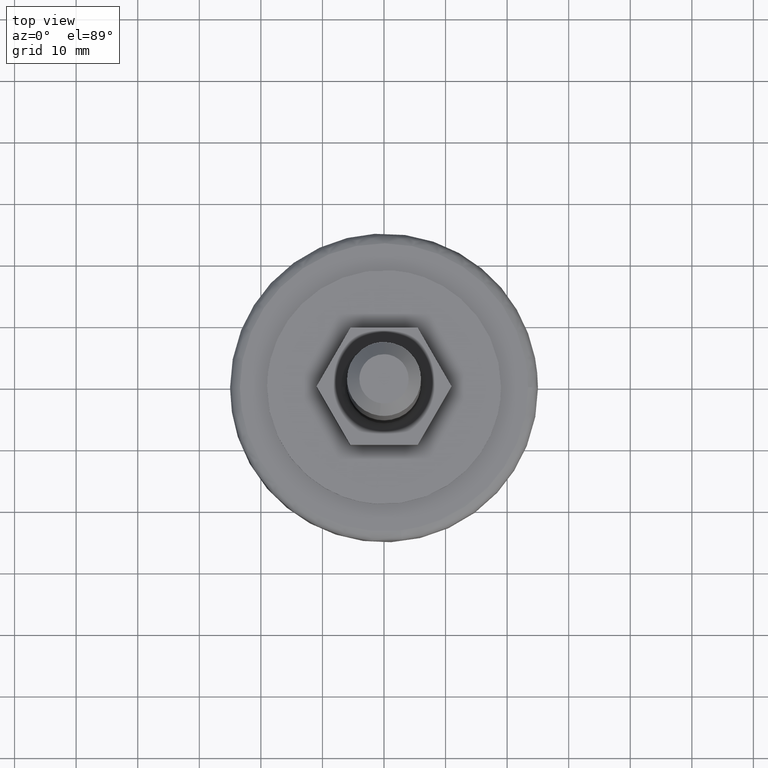
[diagram: clean part render]
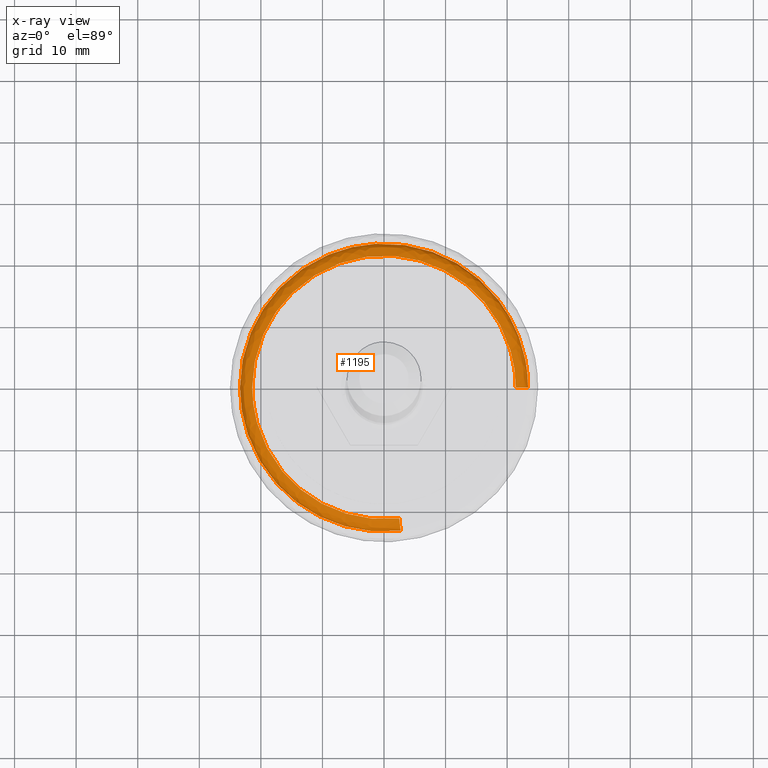
[diagram: x-ray — body ghosted, one internal face saturated and labeled with its STEP entity id]
A machine part, top view, then the same camera in x-ray: the body is ghosted and one INTERNAL B-rep face — a face not visible from any outside direction — is saturated and labeled: STEP entity #1195.
In plain terms, the highlighted face is a freeform B-spline surface patch.
Its self-contained STEP definition (entity closure, byte-faithful):
#917=CARTESIAN_POINT('',(21.905764110055451,8.227848974941869,12.900000000141119));
#918=VERTEX_POINT('',#917);
#919=CARTESIAN_POINT('',(23.399999999999999,1.921379E-017,12.900000000217450));
#920=VERTEX_POINT('',#919);
#921=CARTESIAN_POINT('',(21.905764110055458,8.227848974941869,12.900000000141121));
#922=CARTESIAN_POINT('',(23.399999999999999,4.249606419747416,12.900000000177959));
#923=CARTESIAN_POINT('',(23.399999999999999,1.921379E-017,12.900000000217450));
#931=(BOUNDED_CURVE()B_SPLINE_CURVE(2,(#921,#922,#923),.UNSPECIFIED.,.F.,.U.)B_SPLINE_CURVE_WITH_KNOTS((3,3),(0.440284254726040,0.500000000000000),.UNSPECIFIED.)CURVE()GEOMETRIC_REPRESENTATION_ITEM()RATIONAL_B_SPLINE_CURVE((0.893499657220340,0.930038652611462,1.0))REPRESENTATION_ITEM(''));
#932=EDGE_CURVE('',#918,#920,#931,.T.);
#934=CARTESIAN_POINT('',(2.701862969655055,-23.243492347175511,12.900000000217570));
#935=VERTEX_POINT('',#934);
#949=CARTESIAN_POINT('',(-23.399999999999999,0.0,12.900000000000000));
#950=VERTEX_POINT('',#949);
#951=CARTESIAN_POINT('',(2.701862969655055,-23.243492347175515,12.900000000217567));
#952=CARTESIAN_POINT('',(1.355464404326243,-23.400000000000006,12.900000000000004));
#953=CARTESIAN_POINT('',(0.0,-23.399999999999999,12.900000000000000));
#954=CARTESIAN_POINT('',(-23.400000000000009,-23.400000000000009,12.900000000000002));
#955=CARTESIAN_POINT('',(-23.399999999999999,0.0,12.900000000000000));
#963=(BOUNDED_CURVE()B_SPLINE_CURVE(2,(#951,#952,#953,#954,#955),.UNSPECIFIED.,.F.,.U.)B_SPLINE_CURVE_WITH_KNOTS((3,2,3),(0.729999999950491,0.750000000000000,1.0),.UNSPECIFIED.)CURVE()GEOMETRIC_REPRESENTATION_ITEM()RATIONAL_B_SPLINE_CURVE((0.956886118093213,0.976568542436920,1.0,0.707106781186548,1.0))REPRESENTATION_ITEM(''));
#964=EDGE_CURVE('',#935,#950,#963,.T.);
#966=CARTESIAN_POINT('',(-1.428506676943675,23.356356065813738,12.900000000000050));
#967=VERTEX_POINT('',#966);
#968=CARTESIAN_POINT('',(-23.399999999999999,0.0,12.900000000000000));
#969=CARTESIAN_POINT('',(-23.399999999999995,22.012549488043568,12.900000000000002));
#970=CARTESIAN_POINT('',(-1.428506676943676,23.356356065813749,12.900000000000052));
#978=(BOUNDED_CURVE()B_SPLINE_CURVE(2,(#968,#969,#970),.UNSPECIFIED.,.F.,.U.)B_SPLINE_CURVE_WITH_KNOTS((3,3),(0.0,0.239333177576273),.UNSPECIFIED.)CURVE()GEOMETRIC_REPRESENTATION_ITEM()RATIONAL_B_SPLINE_CURVE((1.0,0.719603741003335,0.976072503176042))REPRESENTATION_ITEM(''));
#979=EDGE_CURVE('',#950,#967,#978,.T.);
#1057=CARTESIAN_POINT('',(-1.428506676943676,23.356356065813749,12.900000000000052));
#1058=CARTESIAN_POINT('',(-0.714920046238067,23.399999999999999,12.899999999999999));
#1059=CARTESIAN_POINT('',(0.0,23.399999999999999,12.900000000000000));
#1060=CARTESIAN_POINT('',(16.207073727380898,23.399999999999999,12.899999999999997));
#1061=CARTESIAN_POINT('',(21.905764110055458,8.227848974941869,12.900000000141121));
#1069=(BOUNDED_CURVE()B_SPLINE_CURVE(2,(#1057,#1058,#1059,#1060,#1061),.UNSPECIFIED.,.F.,.U.)B_SPLINE_CURVE_WITH_KNOTS((3,2,3),(0.239333177576273,0.250000000000000,0.440284254726040),.UNSPECIFIED.)CURVE()GEOMETRIC_REPRESENTATION_ITEM()RATIONAL_B_SPLINE_CURVE((0.976072503176042,0.987503040183212,1.0,0.777068128575085,0.893499657220340))REPRESENTATION_ITEM(''));
#1070=EDGE_CURVE('',#967,#918,#1069,.T.);
#1092=CARTESIAN_POINT('',(2.454917021442404,-21.119095162452339,14.895184650738340));
#1093=CARTESIAN_POINT('',(1.231577119022009,-21.261298127416524,14.895184650738333));
#1094=CARTESIAN_POINT('',(2.603672E-015,-21.261298127416520,14.895184650738333));
#1095=CARTESIAN_POINT('',(-21.261298127416520,-21.261298127416534,14.895184650738335));
#1096=CARTESIAN_POINT('',(-21.261298127416520,-3.905508E-015,14.895184650738333));
#1097=CARTESIAN_POINT('',(-21.261298127416534,21.261298127416520,14.895184650738335));
#1098=CARTESIAN_POINT('',(-5.207344E-015,21.261298127416520,14.895184650738333));
#1099=CARTESIAN_POINT('',(21.261298127416520,21.261298127416534,14.895184650738335));
#1100=CARTESIAN_POINT('',(21.261298127416520,6.509180E-015,14.895184650738333));
#1101=CARTESIAN_POINT('',(2.719812604689965,-23.397931873369568,15.054672244805426));
#1102=CARTESIAN_POINT('',(1.364469325319883,-23.555479119633166,15.054672244805426));
#1103=CARTESIAN_POINT('',(2.884619E-015,-23.555479119633173,15.054672244805424));
#1104=CARTESIAN_POINT('',(-23.555479119633169,-23.555479119633173,15.054672244805426));
#1105=CARTESIAN_POINT('',(-23.555479119633173,-4.326928E-015,15.054672244805424));
#1106=CARTESIAN_POINT('',(-23.555479119633176,23.555479119633166,15.054672244805426));
#1107=CARTESIAN_POINT('',(-5.769238E-015,23.555479119633173,15.054672244805424));
#1108=CARTESIAN_POINT('',(23.555479119633166,23.555479119633180,15.054672244805426));
#1109=CARTESIAN_POINT('',(23.555479119633173,7.211547E-015,15.054672244805424));
#1110=CARTESIAN_POINT('',(2.701298333023367,-23.238657787208954,12.760551126614018));
#1111=CARTESIAN_POINT('',(1.355181128138153,-23.395132579983429,12.760551126614013));
#1112=CARTESIAN_POINT('',(2.864983E-015,-23.395132579983432,12.760551126614009));
#1113=CARTESIAN_POINT('',(-23.395132579983414,-23.395132579983446,12.760551126614008));
#1114=CARTESIAN_POINT('',(-23.395132579983432,-4.297474E-015,12.760551126614009));
#1115=CARTESIAN_POINT('',(-23.395132579983446,23.395132579983414,12.760551126614008));
#1116=CARTESIAN_POINT('',(-5.729966E-015,23.395132579983432,12.760551126614009));
#1117=CARTESIAN_POINT('',(23.395132579983414,23.395132579983446,12.760551126614008));
#1118=CARTESIAN_POINT('',(23.395132579983432,7.162457E-015,12.760551126614009));
#1126=(BOUNDED_SURFACE()B_SPLINE_SURFACE(2,2,((#1092,#1101,#1110),(#1093,#1102,#1111),(#1094,#1103,#1112),(#1095,#1104,#1113),(#1096,#1105,#1114),(#1097,#1106,#1115),(#1098,#1107,#1116),(#1099,#1108,#1117),(#1100,#1109,#1118)),.UNSPECIFIED.,.F.,.F.,.U.)B_SPLINE_SURFACE_WITH_KNOTS((3,2,2,2,3),(3,3),(0.0,3.100983029275963,41.863307861859141,80.625632694442317,119.387957527025510),(0.0,3.644742137595679),.UNSPECIFIED.)GEOMETRIC_REPRESENTATION_ITEM()RATIONAL_B_SPLINE_SURFACE(((0.876475925220254,0.573569815709612,0.871620944530905),(0.894504357997792,0.585367703784116,0.889549514105730),(0.915966774072356,0.599412806083392,0.910893045436754),(0.647686317288129,0.423848859911623,0.644098649363994),(0.915966774072356,0.599412806083392,0.910893045436754),(0.647686317288129,0.423848859911623,0.644098649363994),(0.915966774072356,0.599412806083392,0.910893045436754),(0.647686317288129,0.423848859911623,0.644098649363994),(0.915966774072356,0.599412806083392,0.910893045436754)))REPRESENTATION_ITEM('')SURFACE());
#1127=CARTESIAN_POINT('',(2.470934508600304,-21.256869076213590,14.900000000000000));
#1128=VERTEX_POINT('',#1127);
#1129=CARTESIAN_POINT('',(-21.399999999999999,0.0,14.900000000000000));
#1130=VERTEX_POINT('',#1129);
#1131=CARTESIAN_POINT('',(2.470934508600303,-21.256869076213583,14.900000000000000));
#1132=CARTESIAN_POINT('',(1.239612742972365,-21.399999999999999,14.900000000000002));
#1133=CARTESIAN_POINT('',(0.0,-21.399999999999999,14.900000000000000));
#1134=CARTESIAN_POINT('',(-21.400000000000002,-21.400000000000002,14.900000000000002));
#1135=CARTESIAN_POINT('',(-21.399999999999999,0.0,14.900000000000000));
#1143=(BOUNDED_CURVE()B_SPLINE_CURVE(2,(#1131,#1132,#1133,#1134,#1135),.UNSPECIFIED.,.F.,.U.)B_SPLINE_CURVE_WITH_KNOTS((3,2,3),(0.729999999995623,0.750000000000000,1.0),.UNSPECIFIED.)CURVE()GEOMETRIC_REPRESENTATION_ITEM()RATIONAL_B_SPLINE_CURVE((0.956886118182045,0.976568542489796,1.0,0.707106781186548,1.0))REPRESENTATION_ITEM(''));
#1144=EDGE_CURVE('',#1128,#1130,#1143,.T.);
#1145=ORIENTED_EDGE('',*,*,#1144,.T.);
#1146=CARTESIAN_POINT('',(21.400000006255020,7.535010E-016,14.900000000000000));
#1147=VERTEX_POINT('',#1146);
#1148=CARTESIAN_POINT('',(-21.399999999999999,0.0,14.900000000000000));
#1149=CARTESIAN_POINT('',(-21.400000000000002,21.400000000000002,14.900000000000002));
#1150=CARTESIAN_POINT('',(0.0,21.399999999999999,14.900000000000000));
#1151=CARTESIAN_POINT('',(21.400000000000002,21.400000000000002,14.900000000000002));
#1152=CARTESIAN_POINT('',(21.400000006255020,7.535010E-016,14.900000000000000));
#1160=(BOUNDED_CURVE()B_SPLINE_CURVE(2,(#1148,#1149,#1150,#1151,#1152),.UNSPECIFIED.,.F.,.U.)B_SPLINE_CURVE_WITH_KNOTS((3,2,3),(0.0,0.250000000000000,0.500000000000000),.UNSPECIFIED.)CURVE()GEOMETRIC_REPRESENTATION_ITEM()RATIONAL_B_SPLINE_CURVE((1.0,0.707106781186548,1.0,0.707106781186548,1.0))REPRESENTATION_ITEM(''));
#1161=EDGE_CURVE('',#1130,#1147,#1160,.T.);
#1162=ORIENTED_EDGE('',*,*,#1161,.T.);
#1163=CARTESIAN_POINT('',(21.400000006255016,7.535010E-016,14.900000000000007));
#1164=CARTESIAN_POINT('',(23.399999999565090,3.403246E-016,14.899999987489950));
#1165=CARTESIAN_POINT('',(23.400000000000002,1.921379E-017,12.900000000217450));
#1173=(BOUNDED_CURVE()B_SPLINE_CURVE(2,(#1163,#1164,#1165),.UNSPECIFIED.,.F.,.U.)B_SPLINE_CURVE_WITH_KNOTS((3,3),(-1.736413114598450,-0.276558718239114),.UNSPECIFIED.)CURVE()GEOMETRIC_REPRESENTATION_ITEM()RATIONAL_B_SPLINE_CURVE((0.888510406740012,0.626638728418514,0.883897567059758))REPRESENTATION_ITEM(''));
#1174=EDGE_CURVE('',#1147,#920,#1173,.T.);
#1175=ORIENTED_EDGE('',*,*,#1174,.T.);
#1176=ORIENTED_EDGE('',*,*,#932,.F.);
#1177=ORIENTED_EDGE('',*,*,#1070,.F.);
#1178=ORIENTED_EDGE('',*,*,#979,.F.);
#1179=ORIENTED_EDGE('',*,*,#964,.F.);
#1180=CARTESIAN_POINT('',(2.470934508600304,-21.256869076213587,14.900000000000006));
#1181=CARTESIAN_POINT('',(2.701862966203288,-23.243492347138677,14.899999987426282));
#1182=CARTESIAN_POINT('',(2.701862969655055,-23.243492347175515,12.900000000217577));
#1190=(BOUNDED_CURVE()B_SPLINE_CURVE(2,(#1180,#1181,#1182),.UNSPECIFIED.,.F.,.U.)B_SPLINE_CURVE_WITH_KNOTS((3,3),(-1.736413114565504,-0.276558718239241),.UNSPECIFIED.)CURVE()GEOMETRIC_REPRESENTATION_ITEM()RATIONAL_B_SPLINE_CURVE((0.850203274066144,0.599621900349900,0.845789311821938))REPRESENTATION_ITEM(''));
#1191=EDGE_CURVE('',#1128,#935,#1190,.T.);
#1192=ORIENTED_EDGE('',*,*,#1191,.F.);
#1193=EDGE_LOOP('',(#1145,#1162,#1175,#1176,#1177,#1178,#1179,#1192));
#1194=FACE_OUTER_BOUND('',#1193,.T.);
#1195=ADVANCED_FACE('',(#1194),#1126,.T.);